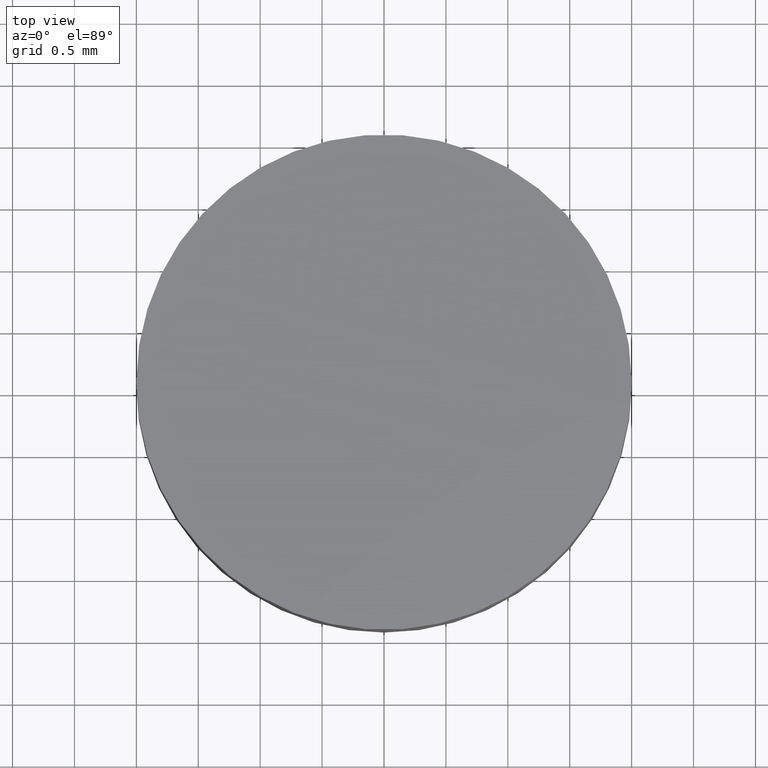
[diagram: clean part render]
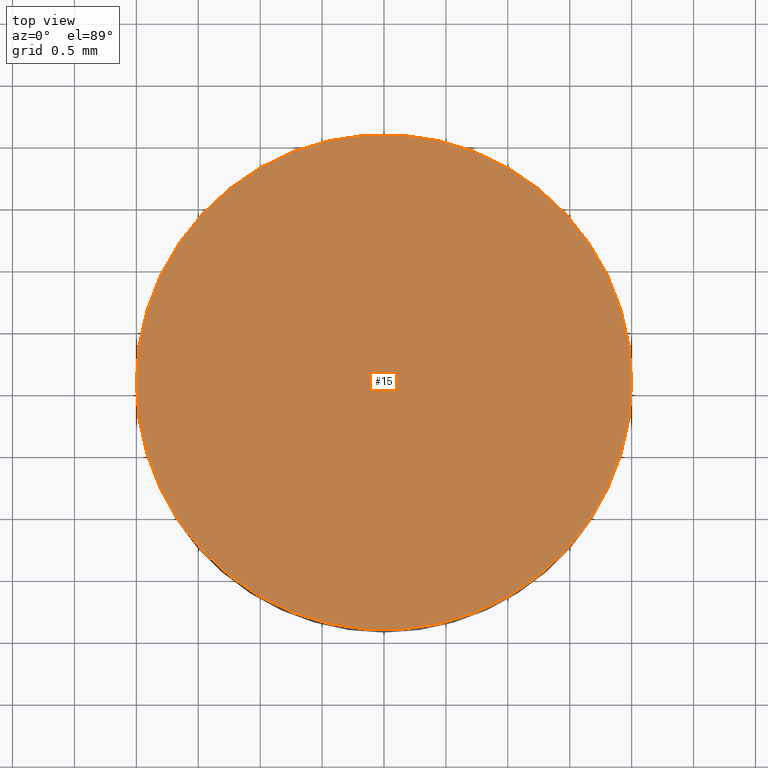
[diagram: same view with one face highlighted and labeled with its STEP entity id]
A machine part, top view. The second image highlights one B-rep face of the part: STEP entity #15.
In plain terms, the highlighted planar face has unit normal (0, 0, -1).
Its self-contained STEP definition (entity closure, byte-faithful):
#5 = AXIS2_PLACEMENT_3D ( 'NONE', #81, #172, #99 ) ;
#6 = CARTESIAN_POINT ( 'NONE',  ( 0.0000000000000000000, 51.57843641650232100, -397.3732588572372600 ) ) ;
#10 = VERTEX_POINT ( 'NONE', #53 ) ;
#15 = ADVANCED_FACE ( 'NONE', ( #161 ), #174, .F. ) ;
#17 = EDGE_CURVE ( 'NONE', #10, #25, #156, .T. ) ;
#22 = DIRECTION ( 'NONE',  ( 1.000000000000000000, 0.0000000000000000000, 0.0000000000000000000 ) ) ;
#25 = VERTEX_POINT ( 'NONE', #152 ) ;
#53 = CARTESIAN_POINT ( 'NONE',  ( -1.999999999999994900, 51.57843641650232100, -397.3732588572372600 ) ) ;
#62 = AXIS2_PLACEMENT_3D ( 'NONE', #6, #153, #150 ) ;
#68 = CARTESIAN_POINT ( 'NONE',  ( 0.0000000000000000000, 51.57843641650232100, -397.3732588572372600 ) ) ;
#75 = AXIS2_PLACEMENT_3D ( 'NONE', #68, #114, #22 ) ;
#76 = ORIENTED_EDGE ( 'NONE', *, *, #103, .T. ) ;
#81 = CARTESIAN_POINT ( 'NONE',  ( 0.0000000000000000000, 51.57843641650232100, -397.3732588572372600 ) ) ;
#92 = ORIENTED_EDGE ( 'NONE', *, *, #17, .T. ) ;
#99 = DIRECTION ( 'NONE',  ( 1.000000000000000000, 0.0000000000000000000, 0.0000000000000000000 ) ) ;
#103 = EDGE_CURVE ( 'NONE', #25, #10, #128, .T. ) ;
#114 = DIRECTION ( 'NONE',  ( -0.0000000000000000000, -0.0000000000000000000, 1.000000000000000000 ) ) ;
#128 = CIRCLE ( 'NONE', #75, 1.999999999999994900 ) ;
#150 = DIRECTION ( 'NONE',  ( -1.000000000000000000, 0.0000000000000000000, -0.0000000000000000000 ) ) ;
#152 = CARTESIAN_POINT ( 'NONE',  ( 1.999999999999994900, 51.57843641650232100, -397.3732588572372600 ) ) ;
#153 = DIRECTION ( 'NONE',  ( 0.0000000000000000000, 0.0000000000000000000, -1.000000000000000000 ) ) ;
#156 = CIRCLE ( 'NONE', #5, 1.999999999999994900 ) ;
#161 = FACE_OUTER_BOUND ( 'NONE', #173, .T. ) ;
#172 = DIRECTION ( 'NONE',  ( -0.0000000000000000000, -0.0000000000000000000, 1.000000000000000000 ) ) ;
#173 = EDGE_LOOP ( 'NONE', ( #76, #92 ) ) ;
#174 = PLANE ( 'NONE',  #62 ) ;